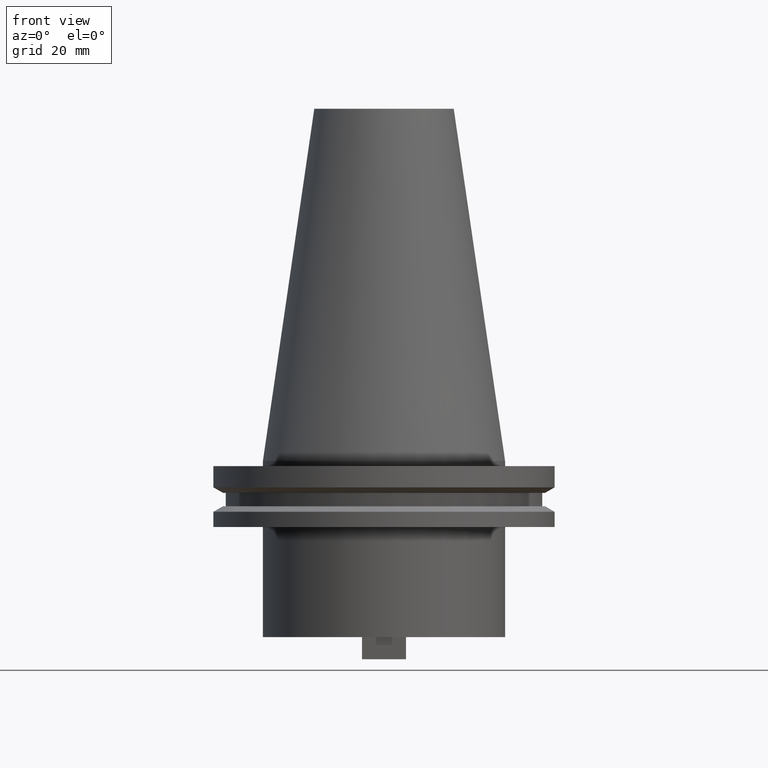
[diagram: clean part render]
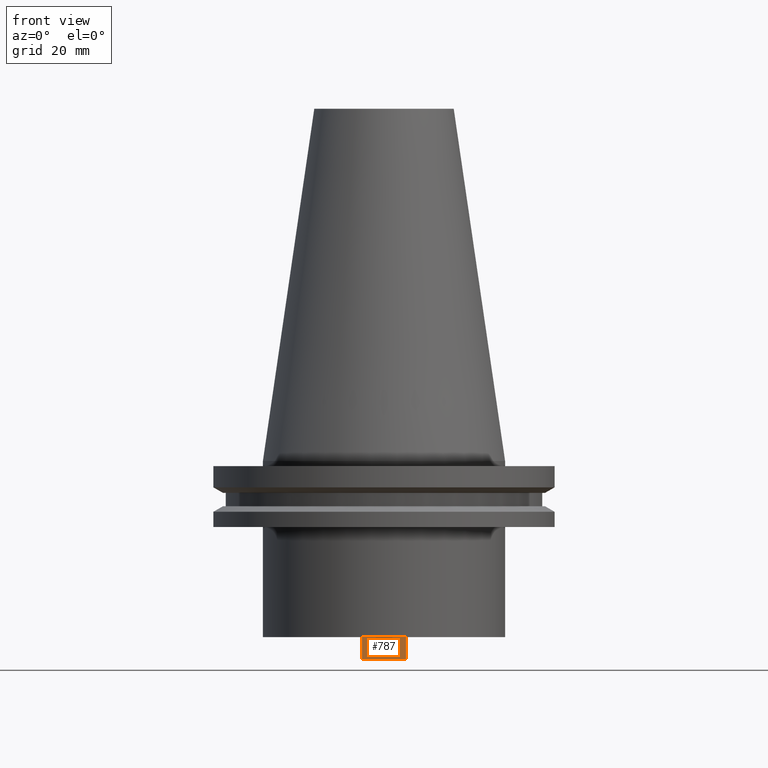
[diagram: same view with one face highlighted and labeled with its STEP entity id]
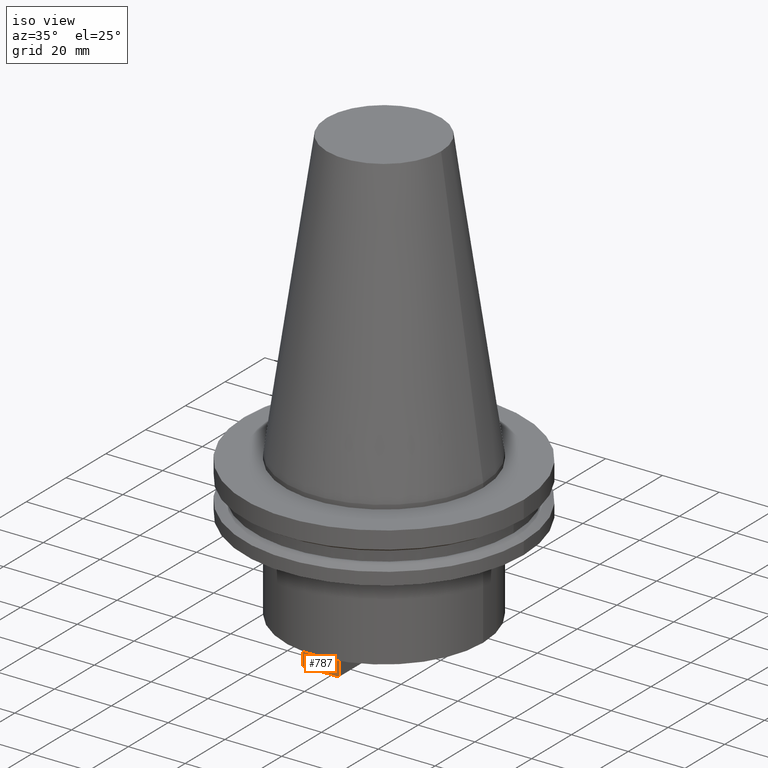
[diagram: same view with one face highlighted and labeled with its STEP entity id]
A machine part, front view. The second image highlights one B-rep face of the part: STEP entity #787.
A second angle (iso view) of the same face is appended — the face is thin or edge-on in the first view.
In plain terms, the highlighted planar face has unit normal (0, 1, 0).
Its self-contained STEP definition (entity closure, byte-faithful):
#5 = CARTESIAN_POINT ( 'NONE',  ( 6.349999999999984546, -31.75000000000000711, -57.20000000000000995 ) ) ;
#92 = EDGE_CURVE ( 'NONE', #776, #490, #565, .T. ) ;
#112 = VERTEX_POINT ( 'NONE', #987 ) ;
#167 = DIRECTION ( 'NONE',  ( -0.000000000000000000, -0.000000000000000000, 1.000000000000000000 ) ) ;
#222 = CARTESIAN_POINT ( 'NONE',  ( 6.349999999999984546, -31.75000000000000711, -57.20000000000000995 ) ) ;
#230 = PLANE ( 'NONE',  #948 ) ;
#235 = DIRECTION ( 'NONE',  ( 0.000000000000000000, 1.000000000000000000, 0.000000000000000000 ) ) ;
#261 = VECTOR ( 'NONE', #167, 1000.000000000000000 ) ;
#271 = EDGE_CURVE ( 'NONE', #112, #490, #767, .T. ) ;
#302 = FACE_OUTER_BOUND ( 'NONE', #805, .T. ) ;
#314 = VECTOR ( 'NONE', #697, 1000.000000000000000 ) ;
#345 = VECTOR ( 'NONE', #691, 1000.000000000000000 ) ;
#353 = ORIENTED_EDGE ( 'NONE', *, *, #271, .F. ) ;
#405 = ORIENTED_EDGE ( 'NONE', *, *, #883, .T. ) ;
#450 = CARTESIAN_POINT ( 'NONE',  ( 6.349999999999984546, -31.75000000000001421, -50.80000000000000426 ) ) ;
#489 = ORIENTED_EDGE ( 'NONE', *, *, #719, .F. ) ;
#490 = VERTEX_POINT ( 'NONE', #573 ) ;
#495 = VERTEX_POINT ( 'NONE', #878 ) ;
#548 = DIRECTION ( 'NONE',  ( 0.000000000000000000, -0.000000000000000000, 1.000000000000000000 ) ) ;
#565 = LINE ( 'NONE', #872, #851 ) ;
#573 = CARTESIAN_POINT ( 'NONE',  ( -6.350000000000004974, -31.75000000000000711, -50.80000000000000426 ) ) ;
#691 = DIRECTION ( 'NONE',  ( -0.000000000000000000, -0.000000000000000000, 1.000000000000000000 ) ) ;
#697 = DIRECTION ( 'NONE',  ( -1.000000000000000000, 0.000000000000000000, 0.000000000000000000 ) ) ;
#699 = CARTESIAN_POINT ( 'NONE',  ( -6.350000000000004974, -31.75000000000000711, -57.20000000000000995 ) ) ;
#701 = LINE ( 'NONE', #222, #314 ) ;
#719 = EDGE_CURVE ( 'NONE', #495, #112, #701, .T. ) ;
#767 = LINE ( 'NONE', #699, #345 ) ;
#776 = VERTEX_POINT ( 'NONE', #450 ) ;
#787 = ADVANCED_FACE ( 'NONE', ( #302 ), #230, .F. ) ;
#805 = EDGE_LOOP ( 'NONE', ( #879, #353, #489, #405 ) ) ;
#809 = LINE ( 'NONE', #942, #261 ) ;
#851 = VECTOR ( 'NONE', #876, 1000.000000000000000 ) ;
#872 = CARTESIAN_POINT ( 'NONE',  ( 6.349999999999984546, -31.75000000000000711, -50.80000000000000426 ) ) ;
#876 = DIRECTION ( 'NONE',  ( -1.000000000000000000, 0.000000000000000000, 0.000000000000000000 ) ) ;
#878 = CARTESIAN_POINT ( 'NONE',  ( 6.349999999999984546, -31.75000000000000711, -57.20000000000000995 ) ) ;
#879 = ORIENTED_EDGE ( 'NONE', *, *, #92, .T. ) ;
#883 = EDGE_CURVE ( 'NONE', #495, #776, #809, .T. ) ;
#942 = CARTESIAN_POINT ( 'NONE',  ( 6.349999999999984546, -31.75000000000000711, -57.20000000000000995 ) ) ;
#948 = AXIS2_PLACEMENT_3D ( 'NONE', #5, #235, #548 ) ;
#987 = CARTESIAN_POINT ( 'NONE',  ( -6.350000000000004974, -31.75000000000000711, -57.20000000000000995 ) ) ;